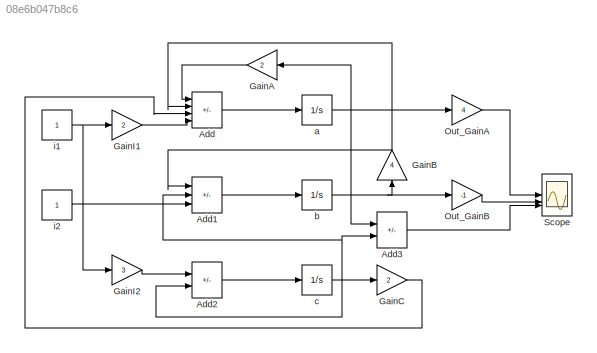
MODEL slx_08e6b047b8c6
KIND model
CONFIG AbsTol = auto
CONFIG EnableMultiTasking = off
CONFIG FixedStep = auto
CONFIG MaxStep = auto
CONFIG MinStep = auto
CONFIG RelTol = 1e-3
CONFIG SampleTimeConstraint = Unconstrained
CONFIG SolverName = VariableStepAuto
CONFIG StartTime = 0.0
CONFIG StopTime = 10.0
BLOCK [Sum] Add
  IconShape = rectangular
  Inputs = ++-+
BLOCK [Sum] Add1
  IconShape = rectangular
  Inputs = +-+
BLOCK [Sum] Add2
  IconShape = rectangular
  Inputs = +-
BLOCK [Sum] Add3
  IconShape = rectangular
  Inputs = +-
BLOCK [Gain] GainA
  Gain = 2
BLOCK [Gain] GainB
  Gain = 4
  NameLocation = right
BLOCK [Gain] GainC
  Gain = 2
BLOCK [Gain] GainI1
  Gain = 2
BLOCK [Gain] GainI2
  Gain = 3
BLOCK [Gain] Out_GainA
  Gain = 4
BLOCK [Gain] Out_GainB
  Gain = -1
BLOCK [Scope] Scope
  Floating = off
  NumInputPorts = 3
  ScopeSpecificationString = Simulink.scopes.TimeScopeBlockCfg('CurrentConfiguration', extmgr.ConfigurationSet(extmgr.Configuration('Core','General UI',true),extmgr.Configuration('Core','Source UI',true),extmgr.Configuration('Sources','WiredSimulink',true),extmgr.Configuration('Visuals','Time Domain',true,'SerializedDisplays',{struct('MinYLimReal','-50048850280172000.00000','MaxYLimReal','214915651203091520.00000','YLabelReal...<+1507ch>
BLOCK [Integrator] a
BLOCK [Integrator] b
BLOCK [Integrator] c
BLOCK [Constant] i1
BLOCK [Constant] i2
LINE Add1:1 -> b:1
LINE Add2:1 -> c:1
LINE Add3:1 -> Scope:3
LINE Add:1 -> a:1
LINE GainA:1 -> Add:1
NET GainB:1 -> Add1:1, Add:2
LINE GainC:1 -> Add:3
LINE GainI1:1 -> Add:4
LINE GainI2:1 -> Add2:1
LINE Out_GainA:1 -> Scope:1
LINE Out_GainB:1 -> Scope:2
NET a:1 -> Add3:1, GainA:1, Out_GainA:1
NET b:1 -> GainB:1, Out_GainB:1
NET c:1 -> Add1:2, Add2:2, Add3:2, GainC:1
NET i1:1 -> GainI1:1, GainI2:1
LINE i2:1 -> Add1:3
note: NET lines group one-source signal fan-out (src -> all destinations, sorted); 1:1 wires keep LINE
